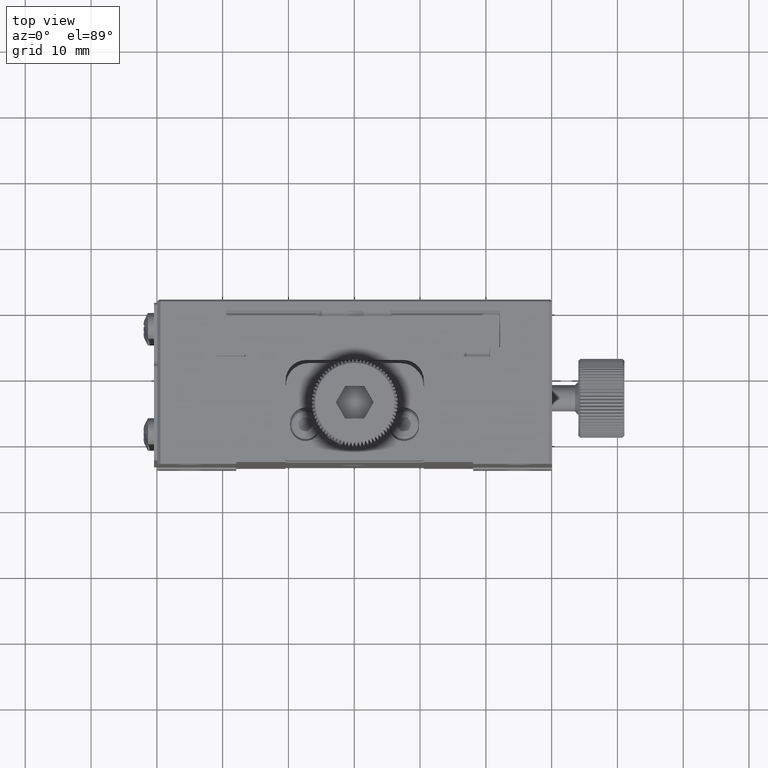
[diagram: clean part render]
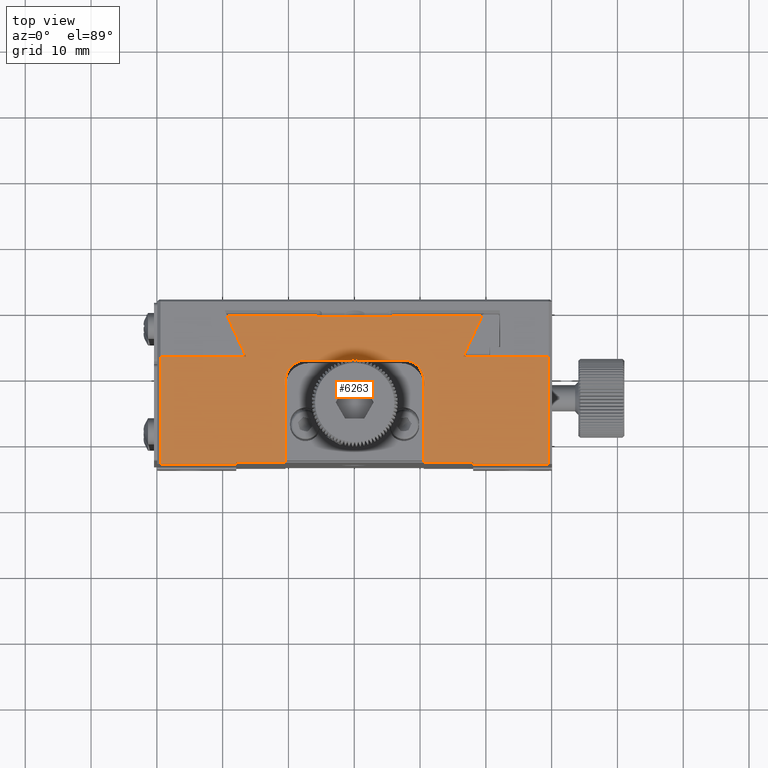
[diagram: same view with one face highlighted and labeled with its STEP entity id]
A machine part, top view. The second image highlights one B-rep face of the part: STEP entity #6263.
In plain terms, the highlighted planar face has unit normal (0, 0, 1).
Its self-contained STEP definition (entity closure, byte-faithful):
#1135 = CARTESIAN_POINT ( 'NONE',  ( 20.05815170115014823, 58.80255524890677066, 80.22904667704491999 ) ) ;
#1196 = VECTOR ( 'NONE', #73547, 1000.000000000000000 ) ;
#1569 = CARTESIAN_POINT ( 'NONE',  ( 50.05815170114995283, 36.63657315266980419, 80.22904667704477788 ) ) ;
#1973 = LINE ( 'NONE', #60534, #26459 ) ;
#1983 = VERTEX_POINT ( 'NONE', #48367 ) ;
#3107 = VECTOR ( 'NONE', #5904, 1000.000000000000000 ) ;
#3443 = CARTESIAN_POINT ( 'NONE',  ( 68.52952478086105259, 56.83385041042597408, 80.22904667704474946 ) ) ;
#4169 = CARTESIAN_POINT ( 'NONE',  ( 57.45815170115010062, 52.13657315266980419, 80.22904667704480630 ) ) ;
#4327 = VECTOR ( 'NONE', #24786, 1000.000000000000000 ) ;
#4998 = EDGE_CURVE ( 'NONE', #13363, #16369, #1973, .T. ) ;
#5904 = DIRECTION ( 'NONE',  ( -1.000000000000000000, -0.000000000000000000, 3.491481338843133355E-15 ) ) ;
#6263 = ADVANCED_FACE ( 'NONE', ( #62074 ), #13992, .T. ) ;
#6467 = B_SPLINE_CURVE_WITH_KNOTS ( 'NONE', 3,
 ( #62795, #50393, #3443, #74405 ),
 .UNSPECIFIED., .F., .F.,
 ( 4, 4 ),
 ( 3.103167691559091397E-17, 0.006944946152543207685 ),
 .UNSPECIFIED. ) ;
#6678 = ORIENTED_EDGE ( 'NONE', *, *, #23575, .T. ) ;
#6919 = ORIENTED_EDGE ( 'NONE', *, *, #48229, .T. ) ;
#7120 = VECTOR ( 'NONE', #42085, 1000.000000000000000 ) ;
#7921 = ORIENTED_EDGE ( 'NONE', *, *, #49604, .T. ) ;
#8010 = LINE ( 'NONE', #42922, #1196 ) ;
#8204 = ORIENTED_EDGE ( 'NONE', *, *, #9893, .T. ) ;
#8636 = ORIENTED_EDGE ( 'NONE', *, *, #12165, .T. ) ;
#8821 = CARTESIAN_POINT ( 'NONE',  ( 79.55815170115005230, 36.33657315266971466, 80.22904667704470683 ) ) ;
#8864 = VERTEX_POINT ( 'NONE', #51771 ) ;
#8972 = CARTESIAN_POINT ( 'NONE',  ( 69.48014221028628867, 58.94480577836244350, 80.22904667704474946 ) ) ;
#9257 = VECTOR ( 'NONE', #26711, 1000.000000000000000 ) ;
#9893 = EDGE_CURVE ( 'NONE', #12014, #16369, #44155, .T. ) ;
#10241 = EDGE_CURVE ( 'NONE', #14830, #26021, #74397, .T. ) ;
#10575 = EDGE_CURVE ( 'NONE', #42862, #12183, #70686, .T. ) ;
#10694 = DIRECTION ( 'NONE',  ( -3.491481338843133355E-15, -1.000000000000000000, 1.219044193948983948E-29 ) ) ;
#10902 = EDGE_CURVE ( 'NONE', #26021, #61687, #55005, .T. ) ;
#11596 = CARTESIAN_POINT ( 'NONE',  ( 20.05815170115014823, 36.33657315266990651, 80.22904667704491999 ) ) ;
#11730 = DIRECTION ( 'NONE',  ( 1.000000000000000000, 0.000000000000000000, -3.491481338843133355E-15 ) ) ;
#12014 = VERTEX_POINT ( 'NONE', #20101 ) ;
#12165 = EDGE_CURVE ( 'NONE', #12183, #24393, #51168, .T. ) ;
#12183 = VERTEX_POINT ( 'NONE', #4169 ) ;
#13363 = VERTEX_POINT ( 'NONE', #72491 ) ;
#13612 = CARTESIAN_POINT ( 'NONE',  ( 20.05815170115014823, 61.33657315266990651, 80.22904667704491999 ) ) ;
#13992 = PLANE ( 'NONE',  #32787 ) ;
#14149 = EDGE_CURVE ( 'NONE', #61687, #1983, #66100, .T. ) ;
#14617 = VERTEX_POINT ( 'NONE', #46444 ) ;
#14671 = CARTESIAN_POINT ( 'NONE',  ( 32.05815170115003099, 61.33657315266990651, 80.22904667704487736 ) ) ;
#14751 = CARTESIAN_POINT ( 'NONE',  ( 42.65815170115009636, 49.03657315266984540, 80.22904667704484893 ) ) ;
#14830 = VERTEX_POINT ( 'NONE', #28106 ) ;
#15858 = ORIENTED_EDGE ( 'NONE', *, *, #10575, .T. ) ;
#16140 = CARTESIAN_POINT ( 'NONE',  ( 55.80815170115025836, 96.33657315266978571, 80.22904667704480630 ) ) ;
#16369 = VERTEX_POINT ( 'NONE', #74179 ) ;
#17419 = VECTOR ( 'NONE', #48330, 1000.000000000000000 ) ;
#17510 = ORIENTED_EDGE ( 'NONE', *, *, #14149, .T. ) ;
#17552 = CARTESIAN_POINT ( 'NONE',  ( 20.05815170115014823, 52.13657315266983261, 80.22904667704491999 ) ) ;
#17782 = EDGE_CURVE ( 'NONE', #24393, #14617, #60616, .T. ) ;
#18335 = ORIENTED_EDGE ( 'NONE', *, *, #63410, .T. ) ;
#19514 = CARTESIAN_POINT ( 'NONE',  ( 60.55815170115009494, 61.33657315266990651, 80.22904667704477788 ) ) ;
#19823 = DIRECTION ( 'NONE',  ( 3.491481338843133355E-15, 0.000000000000000000, 1.000000000000000000 ) ) ;
#20101 = CARTESIAN_POINT ( 'NONE',  ( 32.05815170115002388, 36.33657315266988519, 80.22904667704489157 ) ) ;
#20211 = ORIENTED_EDGE ( 'NONE', *, *, #23905, .T. ) ;
#20412 = CARTESIAN_POINT ( 'NONE',  ( 32.56321390038667118, 54.73486892724736919, 80.22904667704487736 ) ) ;
#20504 = VERTEX_POINT ( 'NONE', #74148 ) ;
#21739 = EDGE_CURVE ( 'NONE', #67068, #14617, #62052, .T. ) ;
#22107 = ORIENTED_EDGE ( 'NONE', *, *, #71902, .T. ) ;
#22682 = ORIENTED_EDGE ( 'NONE', *, *, #49712, .T. ) ;
#23575 = EDGE_CURVE ( 'NONE', #1983, #12014, #31620, .T. ) ;
#23905 = EDGE_CURVE ( 'NONE', #67068, #24586, #70752, .T. ) ;
#24393 = VERTEX_POINT ( 'NONE', #66370 ) ;
#24586 = VERTEX_POINT ( 'NONE', #31301 ) ;
#24786 = DIRECTION ( 'NONE',  ( -0.000000000000000000, 1.000000000000000000, 0.000000000000000000 ) ) ;
#25556 = VECTOR ( 'NONE', #44590, 1000.000000000000000 ) ;
#25657 = ORIENTED_EDGE ( 'NONE', *, *, #34350, .T. ) ;
#26021 = VERTEX_POINT ( 'NONE', #45169 ) ;
#26459 = VECTOR ( 'NONE', #37650, 1000.000000000000000 ) ;
#26711 = DIRECTION ( 'NONE',  ( -1.000000000000000000, -0.000000000000000000, 3.491481338843133355E-15 ) ) ;
#27056 = DIRECTION ( 'NONE',  ( 1.000000000000000000, 0.000000000000000000, -4.476705744456278510E-15 ) ) ;
#28099 = CARTESIAN_POINT ( 'NONE',  ( 68.05815170115005230, 61.33657315266990651, 80.22904667704474946 ) ) ;
#28106 = CARTESIAN_POINT ( 'NONE',  ( 30.63616119201289223, 58.94480577836445434, 80.22904667704422366 ) ) ;
#30785 = DIRECTION ( 'NONE',  ( 0.000000000000000000, -1.000000000000000000, -0.000000000000000000 ) ) ;
#31301 = CARTESIAN_POINT ( 'NONE',  ( 68.05815170115005230, 36.33657315266974308, 80.22904667704476367 ) ) ;
#31620 = LINE ( 'NONE', #11596, #17419 ) ;
#31994 = ORIENTED_EDGE ( 'NONE', *, *, #43528, .T. ) ;
#32096 = CARTESIAN_POINT ( 'NONE',  ( 20.05815170115014823, 52.64446860276289897, 80.22904667704491999 ) ) ;
#32151 = VECTOR ( 'NONE', #49675, 1000.000000000000000 ) ;
#32787 = AXIS2_PLACEMENT_3D ( 'NONE', #13612, #19823, #43472 ) ;
#33249 = VECTOR ( 'NONE', #11730, 1000.000000000000000 ) ;
#33868 = EDGE_CURVE ( 'NONE', #62796, #42862, #67771, .T. ) ;
#34350 = EDGE_CURVE ( 'NONE', #46862, #14830, #72720, .T. ) ;
#35881 = CARTESIAN_POINT ( 'NONE',  ( 20.05815170115014823, 52.64446860276273554, 80.22904667704491999 ) ) ;
#36080 = CARTESIAN_POINT ( 'NONE',  ( 44.30815170115013046, 58.80255524890678487, 80.22904667704483472 ) ) ;
#37606 = ORIENTED_EDGE ( 'NONE', *, *, #76511, .T. ) ;
#37650 = DIRECTION ( 'NONE',  ( -1.000000000000000000, 3.491481338843133355E-15, -0.000000000000000000 ) ) ;
#38240 = CARTESIAN_POINT ( 'NONE',  ( 30.63616119201289223, 58.94480577836445434, 80.22904667704422366 ) ) ;
#38406 = DIRECTION ( 'NONE',  ( -3.491481338843133355E-15, 0.000000000000000000, -1.000000000000000000 ) ) ;
#38572 = VECTOR ( 'NONE', #10694, 1000.000000000000000 ) ;
#38701 = DIRECTION ( 'NONE',  ( -0.000000000000000000, 1.000000000000000000, 0.000000000000000000 ) ) ;
#39573 = ORIENTED_EDGE ( 'NONE', *, *, #33868, .T. ) ;
#39625 = ORIENTED_EDGE ( 'NONE', *, *, #17782, .T. ) ;
#39692 = VECTOR ( 'NONE', #41321, 1000.000000000000000 ) ;
#40599 = CARTESIAN_POINT ( 'NONE',  ( 57.45815170115010062, 49.03657315266978145, 80.22904667704480630 ) ) ;
#40747 = LINE ( 'NONE', #70257, #66569 ) ;
#41321 = DIRECTION ( 'NONE',  ( -1.000000000000000000, -0.000000000000000000, 3.491481338843133355E-15 ) ) ;
#41748 = AXIS2_PLACEMENT_3D ( 'NONE', #14751, #38406, #45388 ) ;
#41809 = CARTESIAN_POINT ( 'NONE',  ( 42.65815170115010346, 52.13657315266983261, 80.22904667704483472 ) ) ;
#41904 = DIRECTION ( 'NONE',  ( -0.000000000000000000, 1.000000000000000000, 0.000000000000000000 ) ) ;
#42068 = ORIENTED_EDGE ( 'NONE', *, *, #75153, .T. ) ;
#42076 = ORIENTED_EDGE ( 'NONE', *, *, #21739, .F. ) ;
#42085 = DIRECTION ( 'NONE',  ( -1.000000000000000000, -0.000000000000000000, 3.491481338843133355E-15 ) ) ;
#42862 = VERTEX_POINT ( 'NONE', #41809 ) ;
#42922 = CARTESIAN_POINT ( 'NONE',  ( 44.30815170115025836, 96.33657315266981414, 80.22904667704483472 ) ) ;
#43472 = DIRECTION ( 'NONE',  ( 1.000000000000000000, 0.000000000000000000, -3.491481338843133355E-15 ) ) ;
#43528 = EDGE_CURVE ( 'NONE', #13363, #62796, #40747, .T. ) ;
#44068 = CARTESIAN_POINT ( 'NONE',  ( 33.55815170115008073, 52.64446860276290607, 80.22904667704486315 ) ) ;
#44155 = LINE ( 'NONE', #14671, #69143 ) ;
#44590 = DIRECTION ( 'NONE',  ( 0.000000000000000000, -1.000000000000000000, -0.000000000000000000 ) ) ;
#45169 = CARTESIAN_POINT ( 'NONE',  ( 33.55815170115008073, 52.64446860276290607, 80.22904667704486315 ) ) ;
#45388 = DIRECTION ( 'NONE',  ( -1.000000000000000000, 0.000000000000000000, 4.476705744456278510E-15 ) ) ;
#46444 = CARTESIAN_POINT ( 'NONE',  ( 60.55815170115007362, 36.63657315266976866, 80.22904667704477788 ) ) ;
#46518 = CARTESIAN_POINT ( 'NONE',  ( 79.55815170115008073, 52.64446860276274975, 80.22904667704470683 ) ) ;
#46862 = VERTEX_POINT ( 'NONE', #46962 ) ;
#46962 = CARTESIAN_POINT ( 'NONE',  ( 44.30815170115013046, 58.94480577836252877, 80.22904667704483472 ) ) ;
#47325 = LINE ( 'NONE', #72115, #4327 ) ;
#48229 = EDGE_CURVE ( 'NONE', #51519, #46862, #8010, .T. ) ;
#48330 = DIRECTION ( 'NONE',  ( 1.000000000000000000, 0.000000000000000000, -3.491481338843133355E-15 ) ) ;
#48367 = CARTESIAN_POINT ( 'NONE',  ( 20.55815170115012336, 36.33657315266990651, 80.22904667704493420 ) ) ;
#49110 = VERTEX_POINT ( 'NONE', #8972 ) ;
#49588 = DIRECTION ( 'NONE',  ( -1.000000000000000000, -0.000000000000000000, 3.491481338843133355E-15 ) ) ;
#49604 = EDGE_CURVE ( 'NONE', #20504, #71528, #51444, .T. ) ;
#49670 = ORIENTED_EDGE ( 'NONE', *, *, #4998, .F. ) ;
#49675 = DIRECTION ( 'NONE',  ( -1.000000000000000000, 3.491481338843133355E-15, -0.000000000000000000 ) ) ;
#49712 = EDGE_CURVE ( 'NONE', #57626, #8864, #65367, .T. ) ;
#49740 = DIRECTION ( 'NONE',  ( 1.000000000000000000, 0.000000000000000000, -3.491481338843133355E-15 ) ) ;
#50119 = CARTESIAN_POINT ( 'NONE',  ( 20.05815170115014823, 36.33657315266974308, 80.22904667704491999 ) ) ;
#50393 = CARTESIAN_POINT ( 'NONE',  ( 67.55308950191326289, 54.73486892724659469, 80.22904667704474946 ) ) ;
#51168 = CIRCLE ( 'NONE', #67265, 3.099999999999998757 ) ;
#51317 = EDGE_LOOP ( 'NONE', ( #37606, #22682, #22107, #42068, #7921, #67872, #6919, #25657, #59361, #52267, #17510, #6678, #8204, #49670, #31994, #39573, #15858, #8636, #39625, #42076, #20211, #18335 ) ) ;
#51444 = LINE ( 'NONE', #16140, #38572 ) ;
#51519 = VERTEX_POINT ( 'NONE', #36080 ) ;
#51771 = CARTESIAN_POINT ( 'NONE',  ( 66.55815170115012336, 52.64446860276277107, 80.22904667704474946 ) ) ;
#52267 = ORIENTED_EDGE ( 'NONE', *, *, #10902, .T. ) ;
#53185 = VECTOR ( 'NONE', #75409, 1000.000000000000000 ) ;
#54249 = VERTEX_POINT ( 'NONE', #8821 ) ;
#54272 = LINE ( 'NONE', #1135, #9257 ) ;
#55005 = LINE ( 'NONE', #32096, #72945 ) ;
#55546 = LINE ( 'NONE', #50119, #70415 ) ;
#57303 = DIRECTION ( 'NONE',  ( -3.491481338843133355E-15, -0.000000000000000000, -1.000000000000000000 ) ) ;
#57626 = VERTEX_POINT ( 'NONE', #46518 ) ;
#58808 = VECTOR ( 'NONE', #30785, 1000.000000000000000 ) ;
#59077 = CARTESIAN_POINT ( 'NONE',  ( 20.05815170115014823, 58.94480577836244350, 80.22904667704491999 ) ) ;
#59361 = ORIENTED_EDGE ( 'NONE', *, *, #10241, .T. ) ;
#60534 = CARTESIAN_POINT ( 'NONE',  ( 50.05815170114995283, 36.63657315266980419, 80.22904667704486315 ) ) ;
#60616 = LINE ( 'NONE', #19514, #25556 ) ;
#61687 = VERTEX_POINT ( 'NONE', #73075 ) ;
#61899 = CARTESIAN_POINT ( 'NONE',  ( 31.58677862143836990, 56.83385041042785701, 80.22904667704487736 ) ) ;
#62052 = LINE ( 'NONE', #1569, #32151 ) ;
#62074 = FACE_OUTER_BOUND ( 'NONE', #51317, .T. ) ;
#62795 = CARTESIAN_POINT ( 'NONE',  ( 66.55815170115012336, 52.64446860276277107, 80.22904667704474946 ) ) ;
#62796 = VERTEX_POINT ( 'NONE', #71931 ) ;
#63410 = EDGE_CURVE ( 'NONE', #24586, #54249, #55546, .T. ) ;
#65367 = LINE ( 'NONE', #35881, #39692 ) ;
#66100 = LINE ( 'NONE', #71174, #58808 ) ;
#66370 = CARTESIAN_POINT ( 'NONE',  ( 60.55815170115008783, 49.03657315266978145, 80.22904667704477788 ) ) ;
#66569 = VECTOR ( 'NONE', #41904, 1000.000000000000000 ) ;
#67068 = VERTEX_POINT ( 'NONE', #76475 ) ;
#67265 = AXIS2_PLACEMENT_3D ( 'NONE', #40599, #57303, #27056 ) ;
#67280 = CARTESIAN_POINT ( 'NONE',  ( 20.05815170115014823, 58.94480577836253588, 80.22904667704491999 ) ) ;
#67771 = CIRCLE ( 'NONE', #41748, 3.099999999999998757 ) ;
#67872 = ORIENTED_EDGE ( 'NONE', *, *, #76627, .T. ) ;
#69143 = VECTOR ( 'NONE', #38701, 1000.000000000000000 ) ;
#70257 = CARTESIAN_POINT ( 'NONE',  ( 39.55815170115005230, 61.33657315266990651, 80.22904667704484893 ) ) ;
#70415 = VECTOR ( 'NONE', #49740, 1000.000000000000000 ) ;
#70604 = CARTESIAN_POINT ( 'NONE',  ( 55.80815170115012336, 58.80255524890677066, 80.22904667704480630 ) ) ;
#70686 = LINE ( 'NONE', #17552, #33249 ) ;
#70752 = LINE ( 'NONE', #28099, #53185 ) ;
#71174 = CARTESIAN_POINT ( 'NONE',  ( 20.55815170115013046, 61.33657315266990651, 80.22904667704491999 ) ) ;
#71528 = VERTEX_POINT ( 'NONE', #70604 ) ;
#71902 = EDGE_CURVE ( 'NONE', #8864, #49110, #6467, .T. ) ;
#71931 = CARTESIAN_POINT ( 'NONE',  ( 39.55815170115006651, 49.03657315266984540, 80.22904667704486315 ) ) ;
#72115 = CARTESIAN_POINT ( 'NONE',  ( 79.55815170115005230, 61.33657315266990651, 80.22904667704470683 ) ) ;
#72491 = CARTESIAN_POINT ( 'NONE',  ( 39.55815170115005230, 36.63657315266986814, 80.22904667704484893 ) ) ;
#72720 = LINE ( 'NONE', #67280, #7120 ) ;
#72945 = VECTOR ( 'NONE', #49588, 1000.000000000000000 ) ;
#73075 = CARTESIAN_POINT ( 'NONE',  ( 20.55815170115012691, 52.64446860276293449, 80.22904667704491999 ) ) ;
#73547 = DIRECTION ( 'NONE',  ( 3.491481338843133355E-15, 1.000000000000000000, -1.219044193948983948E-29 ) ) ;
#74148 = CARTESIAN_POINT ( 'NONE',  ( 55.80815170115013046, 58.94480577836247193, 80.22904667704482051 ) ) ;
#74179 = CARTESIAN_POINT ( 'NONE',  ( 32.05815170115003099, 36.63657315266986814, 80.22904667704489157 ) ) ;
#74397 = B_SPLINE_CURVE_WITH_KNOTS ( 'NONE', 3,
 ( #38240, #61899, #20412, #44068 ),
 .UNSPECIFIED., .F., .F.,
 ( 4, 4 ),
 ( 4.812411825816293448E-16, 0.006944946152545841862 ),
 .UNSPECIFIED. ) ;
#74405 = CARTESIAN_POINT ( 'NONE',  ( 69.48014221028628867, 58.94480577836244350, 80.22904667704474946 ) ) ;
#75153 = EDGE_CURVE ( 'NONE', #49110, #20504, #76480, .T. ) ;
#75409 = DIRECTION ( 'NONE',  ( 0.000000000000000000, -1.000000000000000000, -0.000000000000000000 ) ) ;
#76475 = CARTESIAN_POINT ( 'NONE',  ( 68.05815170115005230, 36.63657315266974734, 80.22904667704474946 ) ) ;
#76480 = LINE ( 'NONE', #59077, #3107 ) ;
#76511 = EDGE_CURVE ( 'NONE', #54249, #57626, #47325, .T. ) ;
#76627 = EDGE_CURVE ( 'NONE', #71528, #51519, #54272, .T. ) ;